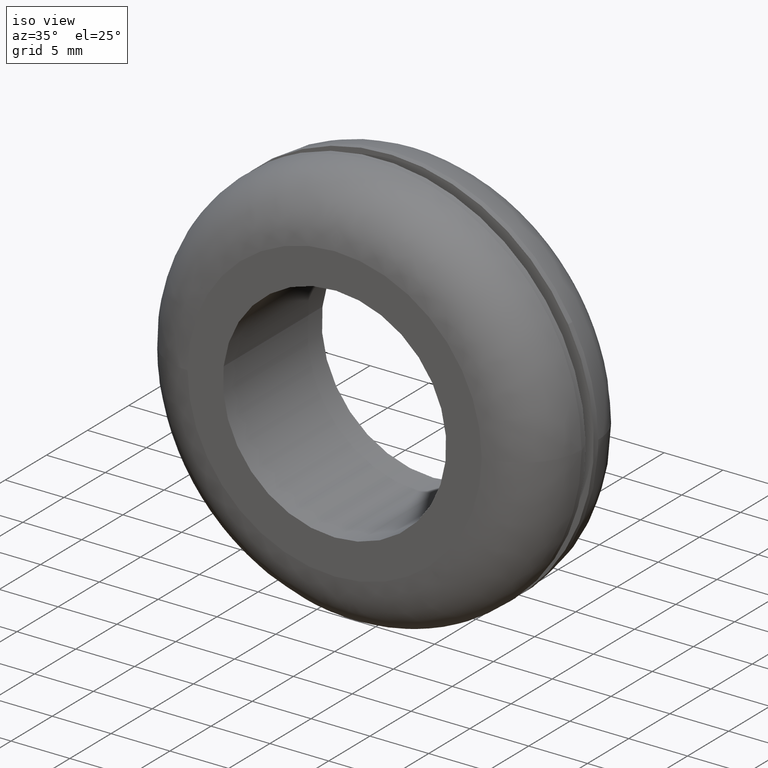
[diagram: clean part render]
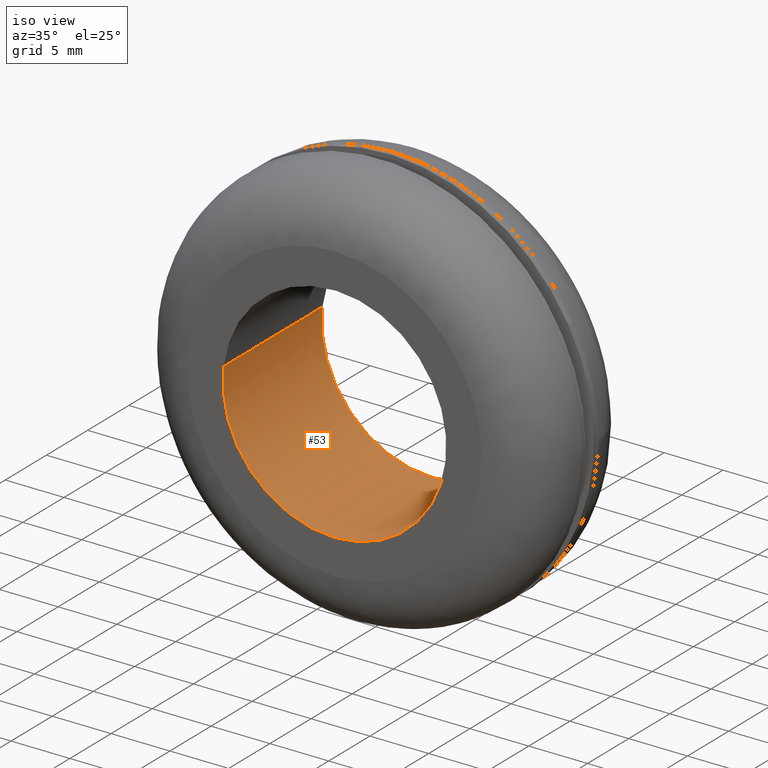
[diagram: same view with one face highlighted and labeled with its STEP entity id]
A machine part, iso view. The second image highlights one B-rep face of the part: STEP entity #53.
In plain terms, the highlighted cylindrical surface (partial cylindrical patch) has radius 9.5 mm, axis along (0, 1, 0).
Its self-contained STEP definition (entity closure, byte-faithful):
#53=ADVANCED_FACE('',(#191),#190,.F.);
#190=CYLINDRICAL_SURFACE('',#376,9.50000000000E+000);
#191=FACE_OUTER_BOUND('',#377,.T.);
#373=CARTESIAN_POINT('',(-3.05309655699E-013,1.20000000000E+001,-2.65371185567E-012));
#374=DIRECTION('',(1.01856202592E-015,1.00000000000E+000,6.98494135263E-015));
#375=DIRECTION('',(-9.93009615725E-001,1.86984930463E-016,1.18033482869E-001));
#376=AXIS2_PLACEMENT_3D('',#373,#374,#375);
#377=EDGE_LOOP('',(#471,#472,#473,#474,#475,#476));
#471=ORIENTED_EDGE('',*,*,#507,.F.);
#472=ORIENTED_EDGE('',*,*,#509,.F.);
#473=ORIENTED_EDGE('',*,*,#540,.F.);
#474=ORIENTED_EDGE('',*,*,#513,.T.);
#475=ORIENTED_EDGE('',*,*,#515,.T.);
#476=ORIENTED_EDGE('',*,*,#541,.T.);
#507=EDGE_CURVE('',#649,#650,#651,.T.);
#509=EDGE_CURVE('',#657,#649,#664,.T.);
#513=EDGE_CURVE('',#691,#692,#693,.T.);
#515=EDGE_CURVE('',#692,#699,#706,.T.);
#540=EDGE_CURVE('',#691,#657,#872,.T.);
#541=EDGE_CURVE('',#699,#650,#878,.T.);
#649=VERTEX_POINT('',#971);
#650=VERTEX_POINT('',#972);
#651=CIRCLE('',#976,9.49999999998E+000);
#657=VERTEX_POINT('',#977);
#664=CIRCLE('',#985,9.49999999998E+000);
#691=VERTEX_POINT('',#1001);
#692=VERTEX_POINT('',#1002);
#693=CIRCLE('',#1006,9.49999999998E+000);
#699=VERTEX_POINT('',#1007);
#706=CIRCLE('',#1015,9.49999999998E+000);
#872=(BOUNDED_CURVE() B_SPLINE_CURVE(1,(#1122,#1123),.UNSPECIFIED.,.F.,.F.) B_SPLINE_CURVE_WITH_KNOTS((2,2),(8.33333343261E-002,9.16666667006E-001),.UNSPECIFIED.) CURVE() GEOMETRIC_REPRESENTATION_ITEM() RATIONAL_B_SPLINE_CURVE((1.00000000000E+000,1.00000000000E+000)) REPRESENTATION_ITEM('') );
#878=(BOUNDED_CURVE() B_SPLINE_CURVE(1,(#1124,#1125),.UNSPECIFIED.,.F.,.F.) B_SPLINE_CURVE_WITH_KNOTS((2,2),(8.33333333333E-002,9.16666666667E-001),.UNSPECIFIED.) CURVE() GEOMETRIC_REPRESENTATION_ITEM() RATIONAL_B_SPLINE_CURVE((7.50000000000E-001,7.50000000000E-001)) REPRESENTATION_ITEM('') );
#971=CARTESIAN_POINT('',(6.66133814775E-016,1.20000000000E+001,-9.49999999997E+000));
#972=CARTESIAN_POINT('',(9.43339740405E+000,1.20000000000E+001,-1.12294853716E+000));
#973=CARTESIAN_POINT('',(7.51754214434E-012,1.20000000000E+001,1.65361058180E-011));
#974=DIRECTION('',(4.58784378545E-016,-1.00000000000E+000,2.27557584019E-015));
#975=DIRECTION('',(-7.90881249380E-013,-2.27557584019E-015,-1.00000000000E+000));
#976=AXIS2_PLACEMENT_3D('',#973,#974,#975);
#977=CARTESIAN_POINT('',(-9.43359175943E+000,1.20000000000E+001,1.12131463734E+000));
#982=CARTESIAN_POINT('',(7.51754214434E-012,1.20000000000E+001,1.65361058180E-011));
#983=DIRECTION('',(4.58784378545E-016,-1.00000000000E+000,2.27557584019E-015));
#984=DIRECTION('',(-7.90881249380E-013,-2.27557584019E-015,-1.00000000000E+000));
#985=AXIS2_PLACEMENT_3D('',#982,#983,#984);
#1001=CARTESIAN_POINT('',(-9.43359175943E+000,3.40285494038E-016,1.12131463734E+000));
#1002=CARTESIAN_POINT('',(-2.22044604925E-015,1.72440099892E-014,-9.49999999997E+000));
#1003=CARTESIAN_POINT('',(7.33635374672E-012,-1.80937037849E-016,1.61390900644E-011));
#1004=DIRECTION('',(-2.73272731762E-016,-1.00000000000E+000,-1.83420495022E-015));
#1005=DIRECTION('',(-7.72104602476E-013,1.83420495022E-015,-1.00000000000E+000));
#1006=AXIS2_PLACEMENT_3D('',#1003,#1004,#1005);
#1007=CARTESIAN_POINT('',(9.43339740405E+000,-6.99109550517E-016,-1.12294853716E+000));
#1012=CARTESIAN_POINT('',(7.33635374672E-012,-1.80937037849E-016,1.61390900644E-011));
#1013=DIRECTION('',(-2.73272731762E-016,-1.00000000000E+000,-1.83420495022E-015));
#1014=DIRECTION('',(-7.72104602476E-013,1.83420495022E-015,-1.00000000000E+000));
#1015=AXIS2_PLACEMENT_3D('',#1012,#1013,#1014);
#1122=CARTESIAN_POINT('',(-9.43359134939E+000,1.42954557081E-008,1.12131808726E+000));
#1123=CARTESIAN_POINT('',(-9.43359134939E+000,1.20000000049E+001,1.12131808726E+000));
#1124=CARTESIAN_POINT('',(9.43359134939E+000,-1.33226762955E-015,-1.12131808726E+000));
#1125=CARTESIAN_POINT('',(9.43359134939E+000,1.20000000000E+001,-1.12131808726E+000));